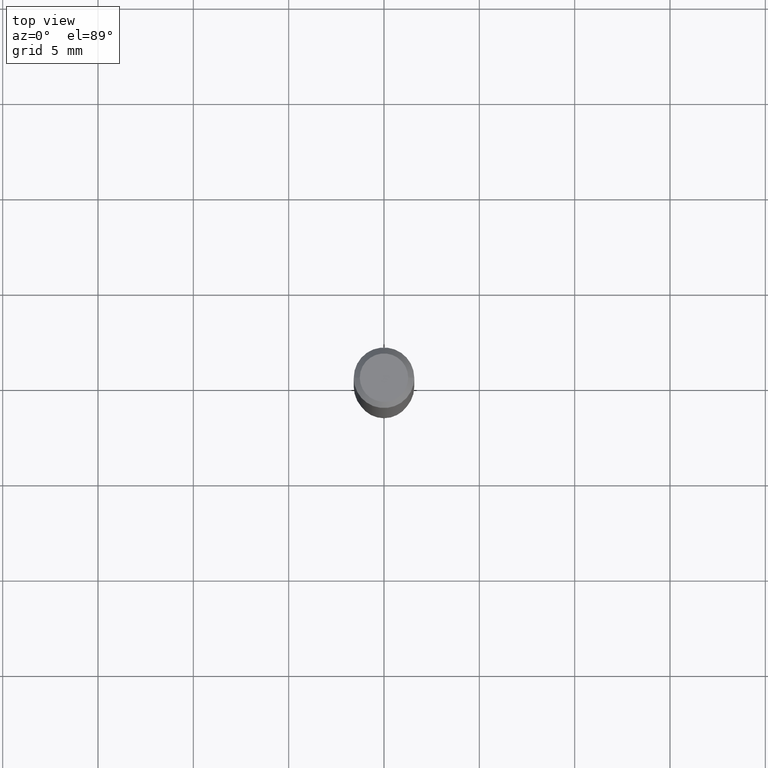
[diagram: clean part render]
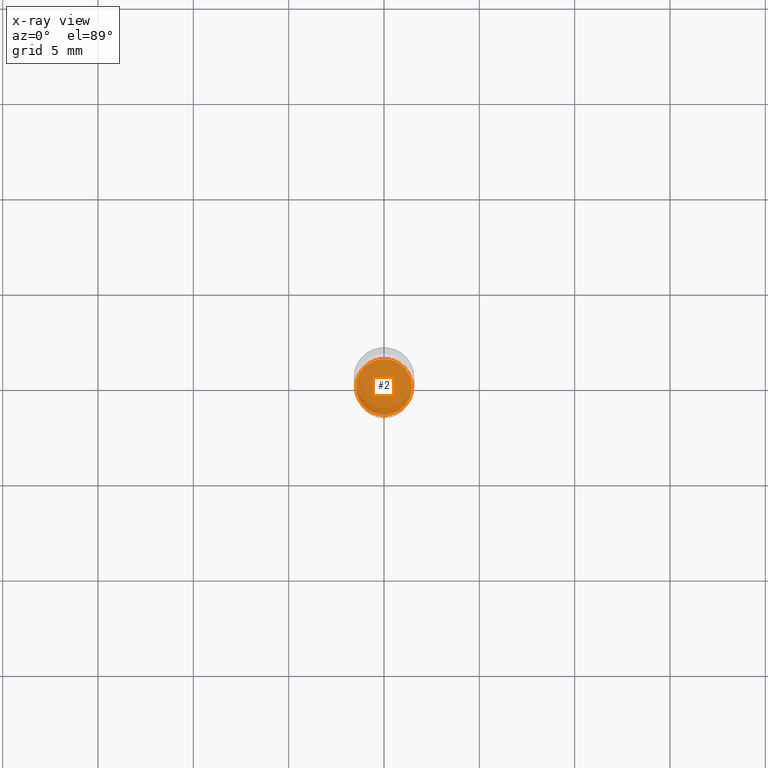
[diagram: x-ray — body ghosted, one internal face saturated and labeled with its STEP entity id]
A machine part, top view, then the same camera in x-ray: the body is ghosted and one INTERNAL B-rep face — a face not visible from any outside direction — is saturated and labeled: STEP entity #2.
In plain terms, the highlighted planar face has unit normal (-0, 0, 1).
Its self-contained STEP definition (entity closure, byte-faithful):
#2 = ADVANCED_FACE ( 'NONE', ( #189 ), #333, .F. ) ;
#21 = AXIS2_PLACEMENT_3D ( 'NONE', #256, #407, #69 ) ;
#24 = EDGE_CURVE ( 'NONE', #234, #138, #165, .T. ) ;
#30 = AXIS2_PLACEMENT_3D ( 'NONE', #33, #436, #209 ) ;
#33 = CARTESIAN_POINT ( 'NONE',  ( 2.690015686803650369E-29, -3.840629472727460101E-15, -1.100000000000000089 ) ) ;
#38 = CARTESIAN_POINT ( 'NONE',  ( 0.05754999999999999699, -4.242498974828304422E-15, -1.100000000000000089 ) ) ;
#69 = DIRECTION ( 'NONE',  ( 1.000000000000000000, -6.982962677686262766E-15, 0.000000000000000000 ) ) ;
#96 = DIRECTION ( 'NONE',  ( -2.445468806185136597E-29, 3.491481338843145583E-15, 1.000000000000000000 ) ) ;
#134 = ORIENTED_EDGE ( 'NONE', *, *, #194, .F. ) ;
#138 = VERTEX_POINT ( 'NONE', #478 ) ;
#165 = CIRCLE ( 'NONE', #251, 0.05754999999999999699 ) ;
#177 = DIRECTION ( 'NONE',  ( 1.000000000000000000, -6.982962677686262766E-15, 0.000000000000000000 ) ) ;
#189 = FACE_OUTER_BOUND ( 'NONE', #326, .T. ) ;
#194 = EDGE_CURVE ( 'NONE', #138, #234, #265, .T. ) ;
#209 = DIRECTION ( 'NONE',  ( 1.000000000000000000, -6.982962677686265922E-15, 4.876176775795935793E-29 ) ) ;
#234 = VERTEX_POINT ( 'NONE', #38 ) ;
#251 = AXIS2_PLACEMENT_3D ( 'NONE', #280, #96, #177 ) ;
#256 = CARTESIAN_POINT ( 'NONE',  ( 2.690015686803650369E-29, -3.840629472727460101E-15, -1.100000000000000089 ) ) ;
#265 = CIRCLE ( 'NONE', #21, 0.05754999999999999699 ) ;
#280 = CARTESIAN_POINT ( 'NONE',  ( 2.690015686803650369E-29, -3.840629472727460101E-15, -1.100000000000000089 ) ) ;
#326 = EDGE_LOOP ( 'NONE', ( #379, #134 ) ) ;
#333 = PLANE ( 'NONE',  #30 ) ;
#379 = ORIENTED_EDGE ( 'NONE', *, *, #24, .F. ) ;
#407 = DIRECTION ( 'NONE',  ( -2.445468806185136597E-29, 3.491481338843145583E-15, 1.000000000000000000 ) ) ;
#436 = DIRECTION ( 'NONE',  ( -2.438088387897960049E-29, 3.491481338843145188E-15, 1.000000000000000000 ) ) ;
#478 = CARTESIAN_POINT ( 'NONE',  ( -0.05754999999999999699, -3.429062901123411709E-15, -1.100000000000000089 ) ) ;